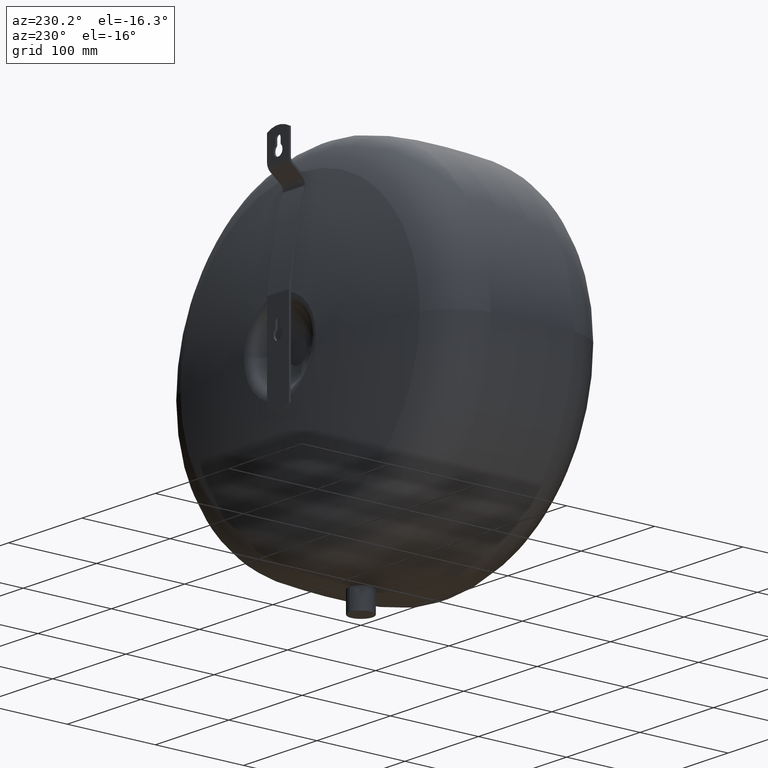
[diagram: clean part render]
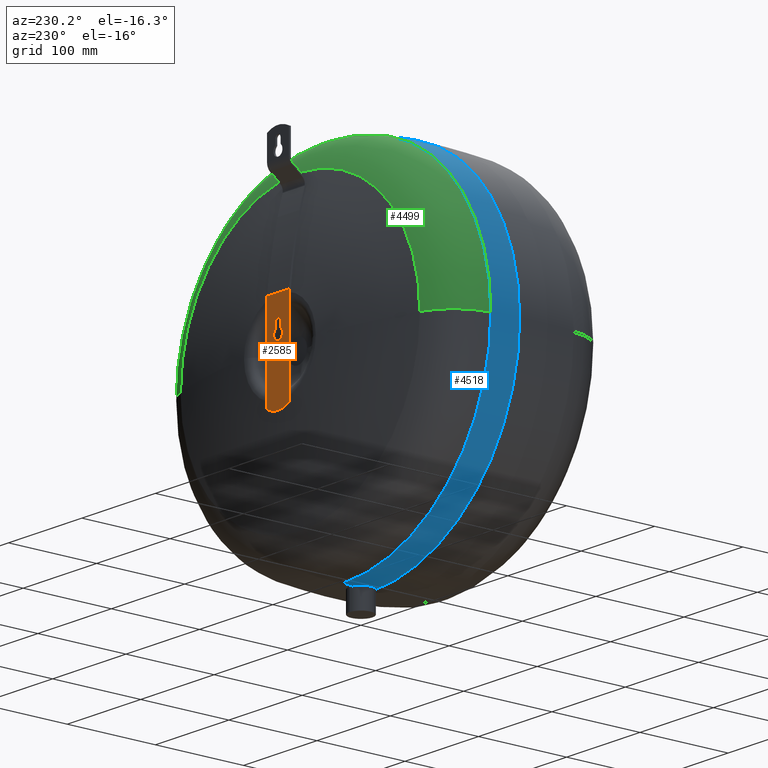
[diagram: same view with three faces highlighted in distinct colors, each labeled with its STEP entity id]
A machine part, auxiliary view with three faces highlighted in distinct colors.
Their STEP definitions:

[orange] entity #2585 — the highlighted planar face has unit normal (0, 1, 0).
#2365=CARTESIAN_POINT('',(-14.999999999999998,94.099999999993969,172.0));
#2366=VERTEX_POINT('',#2365);
#2373=CARTESIAN_POINT('',(15.000000000000005,94.099999999993955,172.0));
#2374=VERTEX_POINT('',#2373);
#2375=CARTESIAN_POINT('',(-7.105427E-015,94.099999999993898,198.12500000000003));
#2376=DIRECTION('',(0.0,1.0,0.0));
#2377=DIRECTION('',(0.0,0.0,1.0));
#2378=AXIS2_PLACEMENT_3D('',#2375,#2376,#2377);
#2379=CIRCLE('',#2378,30.125000000000032);
#2380=EDGE_CURVE('',#2374,#2366,#2379,.T.);
#2397=CARTESIAN_POINT('',(15.000000000000012,94.099999999993898,275.06084847495163));
#2398=VERTEX_POINT('',#2397);
#2399=CARTESIAN_POINT('',(15.000000000000012,94.099999999993898,275.06084847495163));
#2400=DIRECTION('',(0.0,0.0,-1.0));
#2401=VECTOR('',#2400,103.06084847495163);
#2402=LINE('',#2399,#2401);
#2403=EDGE_CURVE('',#2398,#2374,#2402,.T.);
#2526=CARTESIAN_POINT('',(15.000000000000005,94.099999999993898,168.0));
#2527=DIRECTION('',(0.0,1.0,0.0));
#2528=DIRECTION('',(-1.0,0.0,0.0));
#2529=AXIS2_PLACEMENT_3D('',#2526,#2527,#2528);
#2530=PLANE('',#2529);
#2531=ORIENTED_EDGE('',*,*,#2380,.T.);
#2532=CARTESIAN_POINT('',(-14.999999999999988,94.099999999993898,275.06084847495163));
#2533=VERTEX_POINT('',#2532);
#2534=CARTESIAN_POINT('',(-14.999999999999995,94.099999999993898,172.0));
#2535=DIRECTION('',(0.0,0.0,1.0));
#2536=VECTOR('',#2535,103.06084847495163);
#2537=LINE('',#2534,#2536);
#2538=EDGE_CURVE('',#2366,#2533,#2537,.T.);
#2539=ORIENTED_EDGE('',*,*,#2538,.T.);
#2540=CARTESIAN_POINT('',(15.000000000000012,94.099999999993898,275.06084847495163));
#2541=DIRECTION('',(-1.0,0.0,0.0));
#2542=VECTOR('',#2541,30.0);
#2543=LINE('',#2540,#2542);
#2544=EDGE_CURVE('',#2398,#2533,#2543,.T.);
#2545=ORIENTED_EDGE('',*,*,#2544,.F.);
#2546=ORIENTED_EDGE('',*,*,#2403,.T.);
#2547=EDGE_LOOP('',(#2531,#2539,#2545,#2546));
#2548=FACE_OUTER_BOUND('',#2547,.T.);
#2549=CARTESIAN_POINT('',(3.500000000000025,94.099999999993969,242.3733971723999));
#2550=VERTEX_POINT('',#2549);
#2551=CARTESIAN_POINT('',(3.500000000000011,94.099999999993969,248.49999999999542));
#2552=VERTEX_POINT('',#2551);
#2553=CARTESIAN_POINT('',(3.500000000000024,94.099999999993898,242.3733971723999));
#2554=DIRECTION('',(0.0,0.0,1.0));
#2555=VECTOR('',#2554,6.126602827595519);
#2556=LINE('',#2553,#2555);
#2557=EDGE_CURVE('',#2550,#2552,#2556,.T.);
#2558=ORIENTED_EDGE('',*,*,#2557,.T.);
#2559=CARTESIAN_POINT('',(-3.499999999999991,94.099999999993969,248.49999999999542));
#2560=VERTEX_POINT('',#2559);
#2561=CARTESIAN_POINT('',(1.065814E-014,94.099999999993898,248.49999999999542));
#2562=DIRECTION('',(0.0,-1.0,0.0));
#2563=DIRECTION('',(-1.0,0.0,0.0));
#2564=AXIS2_PLACEMENT_3D('',#2561,#2562,#2563);
#2565=CIRCLE('',#2564,3.5);
#2566=EDGE_CURVE('',#2552,#2560,#2565,.T.);
#2567=ORIENTED_EDGE('',*,*,#2566,.T.);
#2568=CARTESIAN_POINT('',(-3.500000000000005,94.099999999993969,242.37339717239976));
#2569=VERTEX_POINT('',#2568);
#2570=CARTESIAN_POINT('',(-3.499999999999987,94.099999999993898,248.49999999999542));
#2571=DIRECTION('',(0.0,0.0,-1.0));
#2572=VECTOR('',#2571,6.126602827595661);
#2573=LINE('',#2570,#2572);
#2574=EDGE_CURVE('',#2560,#2569,#2573,.T.);
#2575=ORIENTED_EDGE('',*,*,#2574,.T.);
#2576=CARTESIAN_POINT('',(8.881784E-015,94.099999999993898,237.49999999999542));
#2577=DIRECTION('',(-6.250595E-017,-1.0,-8.703323E-017));
#2578=DIRECTION('',(0.583333333333336,-1.071531E-016,0.812232862067412));
#2579=AXIS2_PLACEMENT_3D('',#2576,#2577,#2578);
#2580=CIRCLE('',#2579,6.000000000000001);
#2581=EDGE_CURVE('',#2569,#2550,#2580,.T.);
#2582=ORIENTED_EDGE('',*,*,#2581,.T.);
#2583=EDGE_LOOP('',(#2558,#2567,#2575,#2582));
#2584=FACE_BOUND('',#2583,.T.);
#2585=ADVANCED_FACE('',(#2548,#2584),#2530,.T.);

[blue] entity #4518 — the highlighted conical surface has half-angle 3.691 deg.
#3467=CARTESIAN_POINT('',(2.424721E-014,-10.999999999999948,429.00000000000006));
#3468=VERTEX_POINT('',#3467);
#3492=CARTESIAN_POINT('',(-6.123032E-016,-11.000000000001592,22.999999999999972));
#3493=VERTEX_POINT('',#3492);
#3515=CARTESIAN_POINT('',(2.981916E-014,20.000000000000043,427.00000000000006));
#3516=VERTEX_POINT('',#3515);
#3517=CARTESIAN_POINT('',(2.424721E-014,-10.999999999999948,429.00000000000006));
#3518=DIRECTION('',(1.793677E-016,0.997925308968458,-0.064382277997965));
#3519=VECTOR('',#3518,31.064449134018126);
#3520=LINE('',#3517,#3519);
#3521=EDGE_CURVE('',#3468,#3516,#3520,.T.);
#3524=CARTESIAN_POINT('',(2.981916E-014,20.00000000000005,25.000000000000036));
#3525=VERTEX_POINT('',#3524);
#3526=CARTESIAN_POINT('',(2.424721E-014,-10.999999999999945,23.000000000000078));
#3527=DIRECTION('',(1.793677E-016,0.997925308968458,0.064382277997964));
#3528=VECTOR('',#3527,31.064449134018123);
#3529=LINE('',#3526,#3528);
#3530=EDGE_CURVE('',#3493,#3525,#3529,.T.);
#3566=CARTESIAN_POINT('',(-200.99999999999997,20.000000000000075,226.00000000000006));
#3567=VERTEX_POINT('',#3566);
#3568=CARTESIAN_POINT('',(1.751187E-014,20.000000000000043,226.00000000000006));
#3569=DIRECTION('',(0.0,-1.0,0.0));
#3570=DIRECTION('',(0.0,0.0,1.0));
#3571=AXIS2_PLACEMENT_3D('',#3568,#3569,#3570);
#3572=CIRCLE('',#3571,201.0);
#3573=EDGE_CURVE('',#3567,#3525,#3572,.T.);
#4489=CARTESIAN_POINT('',(1.751187E-014,20.000000000000043,226.00000000000006));
#4490=DIRECTION('',(0.0,-1.0,0.0));
#4491=DIRECTION('',(0.0,0.0,1.0));
#4492=AXIS2_PLACEMENT_3D('',#4489,#4490,#4491);
#4493=CIRCLE('',#4492,201.0);
#4494=EDGE_CURVE('',#3516,#3567,#4493,.T.);
#4500=CARTESIAN_POINT('',(1.466466E-014,4.500000000000043,226.00000000000006));
#4501=DIRECTION('',(-1.836910E-016,-1.0,0.0));
#4502=DIRECTION('',(0.0,0.0,1.0));
#4503=AXIS2_PLACEMENT_3D('',#4500,#4501,#4502);
#4504=CONICAL_SURFACE('',#4503,202.0,3.691385986451198);
#4505=ORIENTED_EDGE('',*,*,#3521,.T.);
#4506=ORIENTED_EDGE('',*,*,#4494,.T.);
#4507=ORIENTED_EDGE('',*,*,#3573,.T.);
#4508=ORIENTED_EDGE('',*,*,#3530,.F.);
#4509=CARTESIAN_POINT('',(1.181745E-014,-10.999999999999943,226.00000000000006));
#4510=DIRECTION('',(0.0,-1.0,0.0));
#4511=DIRECTION('',(0.0,0.0,1.0));
#4512=AXIS2_PLACEMENT_3D('',#4509,#4510,#4511);
#4513=CIRCLE('',#4512,202.99999999999997);
#4514=EDGE_CURVE('',#3468,#3493,#4513,.T.);
#4515=ORIENTED_EDGE('',*,*,#4514,.F.);
#4516=EDGE_LOOP('',(#4505,#4506,#4507,#4508,#4515));
#4517=FACE_OUTER_BOUND('',#4516,.T.);
#4518=ADVANCED_FACE('',(#4517),#4504,.T.);

[green] entity #4499 — the highlighted toroidal blend (fillet) surface has major radius 146.101 mm and minor (blend) radius 55 mm.
#3515=CARTESIAN_POINT('',(2.981916E-014,20.000000000000043,427.00000000000006));
#3516=VERTEX_POINT('',#3515);
#3532=CARTESIAN_POINT('',(201.00000000000003,20.000000000000011,226.00000000000006));
#3533=VERTEX_POINT('',#3532);
#3541=CARTESIAN_POINT('',(1.751187E-014,20.000000000000043,226.00000000000006));
#3542=DIRECTION('',(0.0,-1.0,0.0));
#3543=DIRECTION('',(0.0,0.0,1.0));
#3544=AXIS2_PLACEMENT_3D('',#3541,#3542,#3543);
#3545=CIRCLE('',#3544,201.0);
#3546=EDGE_CURVE('',#3533,#3516,#3545,.T.);
#3556=CARTESIAN_POINT('',(163.00000000000003,69.000000000000028,226.00000000000006));
#3557=VERTEX_POINT('',#3556);
#3558=CARTESIAN_POINT('',(146.10148769160787,16.660337393491783,226.00000000000006));
#3559=DIRECTION('',(0.0,0.0,1.0));
#3560=DIRECTION('',(1.0,0.0,0.0));
#3561=AXIS2_PLACEMENT_3D('',#3558,#3559,#3560);
#3562=CIRCLE('',#3561,55.0);
#3563=EDGE_CURVE('',#3533,#3557,#3562,.T.);
#3566=CARTESIAN_POINT('',(-200.99999999999997,20.000000000000075,226.00000000000006));
#3567=VERTEX_POINT('',#3566);
#3575=CARTESIAN_POINT('',(-162.99999999999997,69.000000000000085,226.00000000000006));
#3576=VERTEX_POINT('',#3575);
#3577=CARTESIAN_POINT('',(-146.10148769160782,16.660337393491833,226.00000000000006));
#3578=DIRECTION('',(0.0,0.0,-1.0));
#3579=DIRECTION('',(-1.0,0.0,0.0));
#3580=AXIS2_PLACEMENT_3D('',#3577,#3578,#3579);
#3581=CIRCLE('',#3580,55.0);
#3582=EDGE_CURVE('',#3567,#3576,#3581,.T.);
#4461=CARTESIAN_POINT('',(3.649327E-014,69.000000000000057,389.00000000000006));
#4462=VERTEX_POINT('',#4461);
#4463=CARTESIAN_POINT('',(2.651273E-014,69.000000000000071,226.00000000000006));
#4464=DIRECTION('',(0.0,-1.0,0.0));
#4465=DIRECTION('',(0.0,0.0,1.0));
#4466=AXIS2_PLACEMENT_3D('',#4463,#4464,#4465);
#4467=CIRCLE('',#4466,163.0);
#4468=EDGE_CURVE('',#4462,#3576,#4467,.T.);
#4470=CARTESIAN_POINT('',(2.651273E-014,69.000000000000071,226.00000000000006));
#4471=DIRECTION('',(0.0,-1.0,0.0));
#4472=DIRECTION('',(0.0,0.0,1.0));
#4473=AXIS2_PLACEMENT_3D('',#4470,#4471,#4472);
#4474=CIRCLE('',#4473,163.0);
#4475=EDGE_CURVE('',#3557,#4462,#4474,.T.);
#4480=CARTESIAN_POINT('',(1.689841E-014,16.660337393491808,226.00000000000006));
#4481=DIRECTION('',(-1.836910E-016,-1.0,0.0));
#4482=DIRECTION('',(1.0,0.0,0.0));
#4483=AXIS2_PLACEMENT_3D('',#4480,#4481,#4482);
#4484=TOROIDAL_SURFACE('',#4483,146.10148769160784,55.0);
#4485=ORIENTED_EDGE('',*,*,#3563,.T.);
#4486=ORIENTED_EDGE('',*,*,#4475,.T.);
#4487=ORIENTED_EDGE('',*,*,#4468,.T.);
#4488=ORIENTED_EDGE('',*,*,#3582,.F.);
#4489=CARTESIAN_POINT('',(1.751187E-014,20.000000000000043,226.00000000000006));
#4490=DIRECTION('',(0.0,-1.0,0.0));
#4491=DIRECTION('',(0.0,0.0,1.0));
#4492=AXIS2_PLACEMENT_3D('',#4489,#4490,#4491);
#4493=CIRCLE('',#4492,201.0);
#4494=EDGE_CURVE('',#3516,#3567,#4493,.T.);
#4495=ORIENTED_EDGE('',*,*,#4494,.F.);
#4496=ORIENTED_EDGE('',*,*,#3546,.F.);
#4497=EDGE_LOOP('',(#4485,#4486,#4487,#4488,#4495,#4496));
#4498=FACE_OUTER_BOUND('',#4497,.T.);
#4499=ADVANCED_FACE('',(#4498),#4484,.T.);